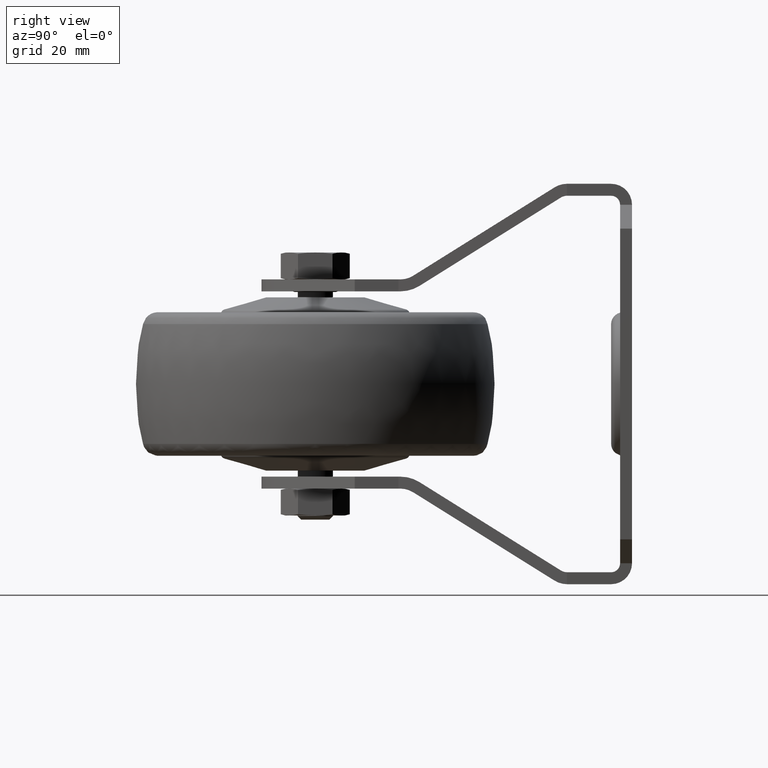
[diagram: clean part render]
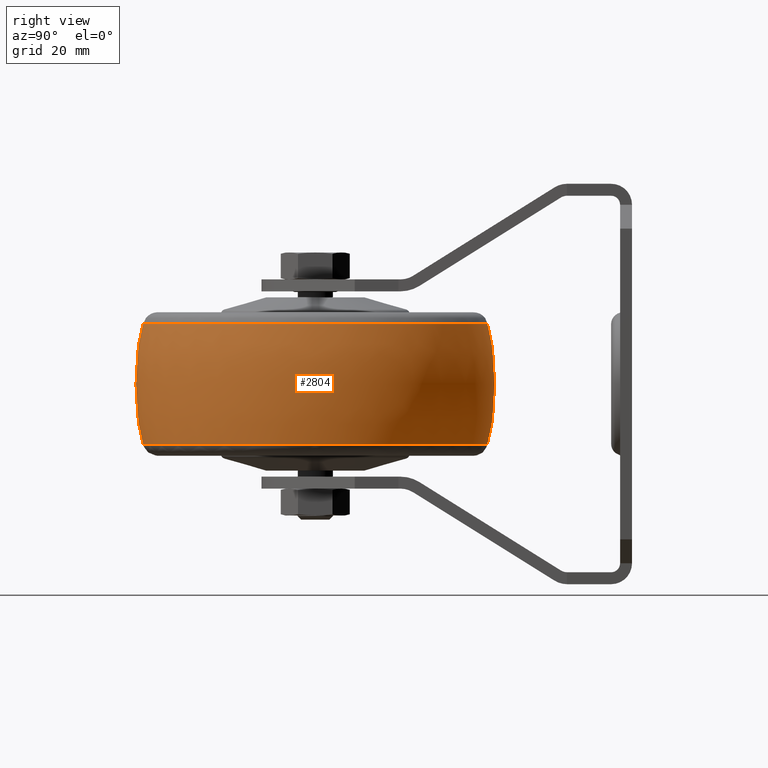
[diagram: same view with one face highlighted and labeled with its STEP entity id]
A machine part, right view. The second image highlights one B-rep face of the part: STEP entity #2804.
In plain terms, the highlighted face is a freeform B-spline surface patch.
Its self-contained STEP definition (entity closure, byte-faithful):
#55=(
BOUNDED_SURFACE()
B_SPLINE_SURFACE(2,2,((#4663,#4664,#4665,#4666,#4667,#4668,#4669,#4670,
#4671),(#4672,#4673,#4674,#4675,#4676,#4677,#4678,#4679,#4680),(#4681,#4682,
#4683,#4684,#4685,#4686,#4687,#4688,#4689)),.UNSPECIFIED.,.F.,.T.,.F.)
B_SPLINE_SURFACE_WITH_KNOTS((3,3),(3,2,2,2,3),(-0.209753877460467,0.209753877460468),
(-3.14159265358979,-1.5707963267949,0.,1.5707963267949,3.14159265358979),
 .UNSPECIFIED.)
GEOMETRIC_REPRESENTATION_ITEM()
RATIONAL_B_SPLINE_SURFACE(((1.,0.707106781186548,1.,0.707106781186548,1.,
0.707106781186548,1.,0.707106781186548,1.),(0.97808219178082,0.691608550366019,
0.97808219178082,0.691608550366019,0.97808219178082,0.691608550366019,0.97808219178082,
0.691608550366019,0.97808219178082),(1.,0.707106781186548,1.,0.707106781186548,
1.,0.707106781186548,1.,0.707106781186548,1.)))
REPRESENTATION_ITEM('')
SURFACE()
);
#723=FACE_OUTER_BOUND('',#915,.T.);
#915=EDGE_LOOP('',(#2126,#2127,#2128,#2129));
#1118=CIRCLE('',#3239,28.9452054794521);
#1119=CIRCLE('',#3240,48.1250000000001);
#1120=CIRCLE('',#3241,28.9452054794521);
#1321=VERTEX_POINT('',#4660);
#1322=VERTEX_POINT('',#4690);
#1616=EDGE_CURVE('',#1321,#1321,#1118,.T.);
#1617=EDGE_CURVE('',#1321,#1322,#1119,.T.);
#1618=EDGE_CURVE('',#1322,#1322,#1120,.T.);
#2126=ORIENTED_EDGE('',*,*,#1616,.F.);
#2127=ORIENTED_EDGE('',*,*,#1617,.T.);
#2128=ORIENTED_EDGE('',*,*,#1618,.T.);
#2129=ORIENTED_EDGE('',*,*,#1617,.F.);
#2804=ADVANCED_FACE('',(#723),#55,.F.);
#3239=AXIS2_PLACEMENT_3D('',#4662,#3746,#3747);
#3240=AXIS2_PLACEMENT_3D('',#4691,#3748,#3749);
#3241=AXIS2_PLACEMENT_3D('',#4692,#3750,#3751);
#3746=DIRECTION('center_axis',(1.,0.,0.));
#3747=DIRECTION('ref_axis',(0.,0.,-1.));
#3748=DIRECTION('center_axis',(0.,-1.,-1.22464679914735E-16));
#3749=DIRECTION('ref_axis',(0.,-1.22464679914735E-16,1.));
#3750=DIRECTION('center_axis',(1.,0.,0.));
#3751=DIRECTION('ref_axis',(0.,0.,-1.));
#4660=CARTESIAN_POINT('',(24.0205479452055,-3.54476532410734E-15,28.9452054794521));
#4662=CARTESIAN_POINT('Origin',(24.0205479452055,0.,0.));
#4663=CARTESIAN_POINT('Ctrl Pts',(3.97945205479452,0.,28.9452054794521));
#4664=CARTESIAN_POINT('Ctrl Pts',(3.97945205479452,-28.9452054794521,28.9452054794521));
#4665=CARTESIAN_POINT('Ctrl Pts',(3.97945205479452,-28.9452054794521,0.));
#4666=CARTESIAN_POINT('Ctrl Pts',(3.97945205479452,-28.9452054794521,-28.9452054794521));
#4667=CARTESIAN_POINT('Ctrl Pts',(3.97945205479452,0.,-28.9452054794521));
#4668=CARTESIAN_POINT('Ctrl Pts',(3.97945205479452,28.9452054794521,-28.9452054794521));
#4669=CARTESIAN_POINT('Ctrl Pts',(3.97945205479452,28.9452054794521,0.));
#4670=CARTESIAN_POINT('Ctrl Pts',(3.97945205479452,28.9452054794521,28.9452054794521));
#4671=CARTESIAN_POINT('Ctrl Pts',(3.97945205479452,0.,28.9452054794521));
#4672=CARTESIAN_POINT('Ctrl Pts',(14.,0.,31.078431372549));
#4673=CARTESIAN_POINT('Ctrl Pts',(14.,-31.078431372549,31.078431372549));
#4674=CARTESIAN_POINT('Ctrl Pts',(14.,-31.078431372549,0.));
#4675=CARTESIAN_POINT('Ctrl Pts',(14.,-31.078431372549,-31.078431372549));
#4676=CARTESIAN_POINT('Ctrl Pts',(14.,0.,-31.078431372549));
#4677=CARTESIAN_POINT('Ctrl Pts',(14.,31.078431372549,-31.078431372549));
#4678=CARTESIAN_POINT('Ctrl Pts',(14.,31.078431372549,0.));
#4679=CARTESIAN_POINT('Ctrl Pts',(14.,31.078431372549,31.078431372549));
#4680=CARTESIAN_POINT('Ctrl Pts',(14.,0.,31.078431372549));
#4681=CARTESIAN_POINT('Ctrl Pts',(24.0205479452055,0.,28.9452054794521));
#4682=CARTESIAN_POINT('Ctrl Pts',(24.0205479452055,-28.9452054794521,28.9452054794521));
#4683=CARTESIAN_POINT('Ctrl Pts',(24.0205479452055,-28.9452054794521,0.));
#4684=CARTESIAN_POINT('Ctrl Pts',(24.0205479452055,-28.9452054794521,-28.9452054794521));
#4685=CARTESIAN_POINT('Ctrl Pts',(24.0205479452055,0.,-28.9452054794521));
#4686=CARTESIAN_POINT('Ctrl Pts',(24.0205479452055,28.9452054794521,-28.9452054794521));
#4687=CARTESIAN_POINT('Ctrl Pts',(24.0205479452055,28.9452054794521,0.));
#4688=CARTESIAN_POINT('Ctrl Pts',(24.0205479452055,28.9452054794521,28.9452054794521));
#4689=CARTESIAN_POINT('Ctrl Pts',(24.0205479452055,0.,28.9452054794521));
#4690=CARTESIAN_POINT('',(3.97945205479451,-3.54476532410734E-15,28.9452054794521));
#4691=CARTESIAN_POINT('Origin',(14.,2.21967232345459E-15,-18.1250000000001));
#4692=CARTESIAN_POINT('Origin',(3.97945205479451,0.,0.));